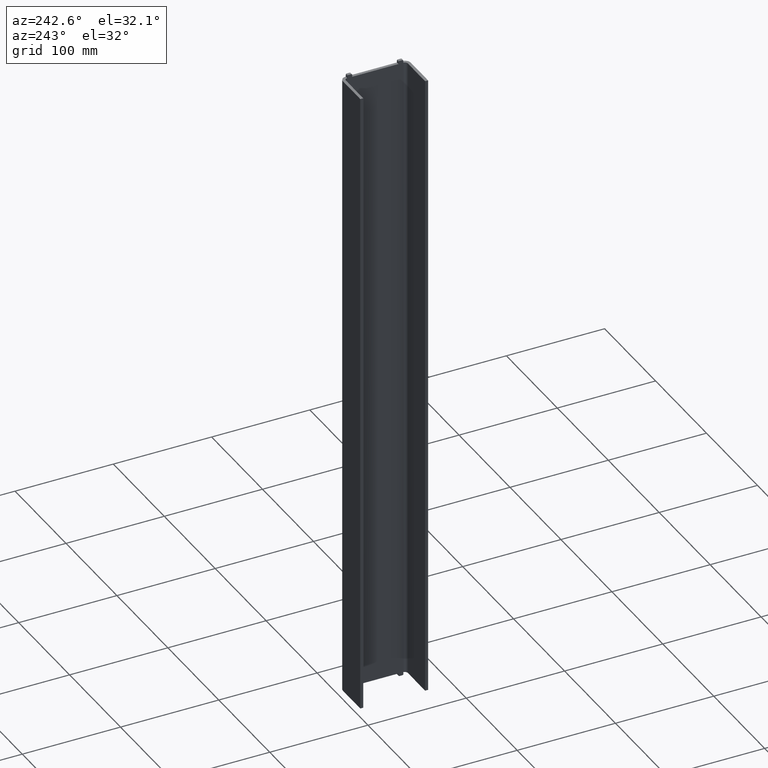
[diagram: clean part render]
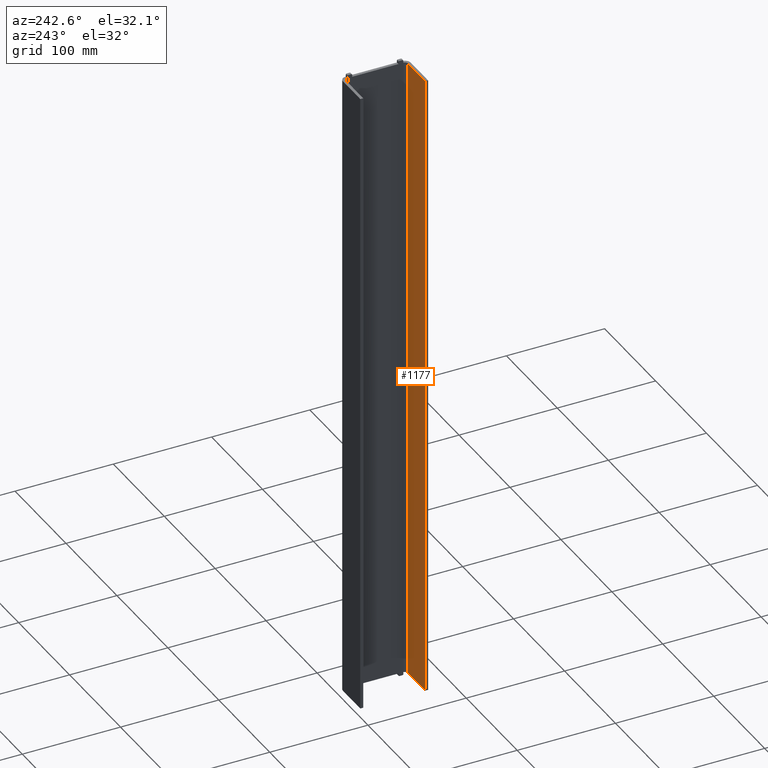
[diagram: same view with one face highlighted and labeled with its STEP entity id]
A machine part, auxiliary view. The second image highlights one B-rep face of the part: STEP entity #1177.
In plain terms, the highlighted planar face has unit normal (-0, -1, 0).
Its self-contained STEP definition (entity closure, byte-faithful):
#12 = AXIS2_PLACEMENT_3D ( 'NONE', #442, #65, #874 ) ;
#65 = DIRECTION ( 'NONE',  ( -5.551115123125788224E-15, -1.000000000000000000, 0.000000000000000000 ) ) ;
#87 = DIRECTION ( 'NONE',  ( 1.000000000000000000, -5.551115123125788224E-15, -0.000000000000000000 ) ) ;
#134 = LINE ( 'NONE', #1109, #789 ) ;
#138 = EDGE_LOOP ( 'NONE', ( #1199, #464, #963, #975 ) ) ;
#153 = VERTEX_POINT ( 'NONE', #1145 ) ;
#186 = LINE ( 'NONE', #814, #1062 ) ;
#264 = PLANE ( 'NONE',  #12 ) ;
#356 = EDGE_CURVE ( 'NONE', #694, #153, #186, .T. ) ;
#358 = VECTOR ( 'NONE', #818, 1000.000000000000000 ) ;
#442 = CARTESIAN_POINT ( 'NONE',  ( -1090.972523324354370, -1163.305262667896159, 104.7558775263622834 ) ) ;
#452 = FACE_OUTER_BOUND ( 'NONE', #138, .T. ) ;
#464 = ORIENTED_EDGE ( 'NONE', *, *, #1296, .T. ) ;
#551 = EDGE_CURVE ( 'NONE', #755, #641, #134, .T. ) ;
#627 = CARTESIAN_POINT ( 'NONE',  ( 309.9999999999996021, -1163.305262667903889, 104.7558775263622834 ) ) ;
#641 = VERTEX_POINT ( 'NONE', #1291 ) ;
#694 = VERTEX_POINT ( 'NONE', #1022 ) ;
#745 = LINE ( 'NONE', #627, #358 ) ;
#755 = VERTEX_POINT ( 'NONE', #839 ) ;
#777 = CARTESIAN_POINT ( 'NONE',  ( 343.9999999999996589, -1163.305262667904117, 104.7558775263622834 ) ) ;
#789 = VECTOR ( 'NONE', #1025, 1000.000000000000000 ) ;
#814 = CARTESIAN_POINT ( 'NONE',  ( -1090.972523324354370, -1163.305262667896159, 25.00000000000045119 ) ) ;
#818 = DIRECTION ( 'NONE',  ( -0.000000000000000000, -0.000000000000000000, -1.000000000000000000 ) ) ;
#834 = VECTOR ( 'NONE', #1286, 1000.000000000000000 ) ;
#839 = CARTESIAN_POINT ( 'NONE',  ( 309.9999999999996021, -1163.305262667903889, -624.9999999999997726 ) ) ;
#853 = EDGE_CURVE ( 'NONE', #694, #755, #745, .T. ) ;
#874 = DIRECTION ( 'NONE',  ( -1.000000000000000000, 5.551115123125788224E-15, 0.000000000000000000 ) ) ;
#963 = ORIENTED_EDGE ( 'NONE', *, *, #551, .F. ) ;
#975 = ORIENTED_EDGE ( 'NONE', *, *, #853, .F. ) ;
#1022 = CARTESIAN_POINT ( 'NONE',  ( 309.9999999999996021, -1163.305262667903889, 25.00000000000045119 ) ) ;
#1025 = DIRECTION ( 'NONE',  ( 1.000000000000000000, -5.551115123125788224E-15, -0.000000000000000000 ) ) ;
#1062 = VECTOR ( 'NONE', #87, 1000.000000000000000 ) ;
#1109 = CARTESIAN_POINT ( 'NONE',  ( -1090.972523324354370, -1163.305262667896159, -624.9999999999997726 ) ) ;
#1145 = CARTESIAN_POINT ( 'NONE',  ( 343.9999999999996589, -1163.305262667904117, 25.00000000000045119 ) ) ;
#1152 = LINE ( 'NONE', #777, #834 ) ;
#1177 = ADVANCED_FACE ( 'NONE', ( #452 ), #264, .F. ) ;
#1199 = ORIENTED_EDGE ( 'NONE', *, *, #356, .T. ) ;
#1286 = DIRECTION ( 'NONE',  ( -0.000000000000000000, -0.000000000000000000, -1.000000000000000000 ) ) ;
#1291 = CARTESIAN_POINT ( 'NONE',  ( 343.9999999999996589, -1163.305262667903889, -624.9999999999997726 ) ) ;
#1296 = EDGE_CURVE ( 'NONE', #153, #641, #1152, .T. ) ;